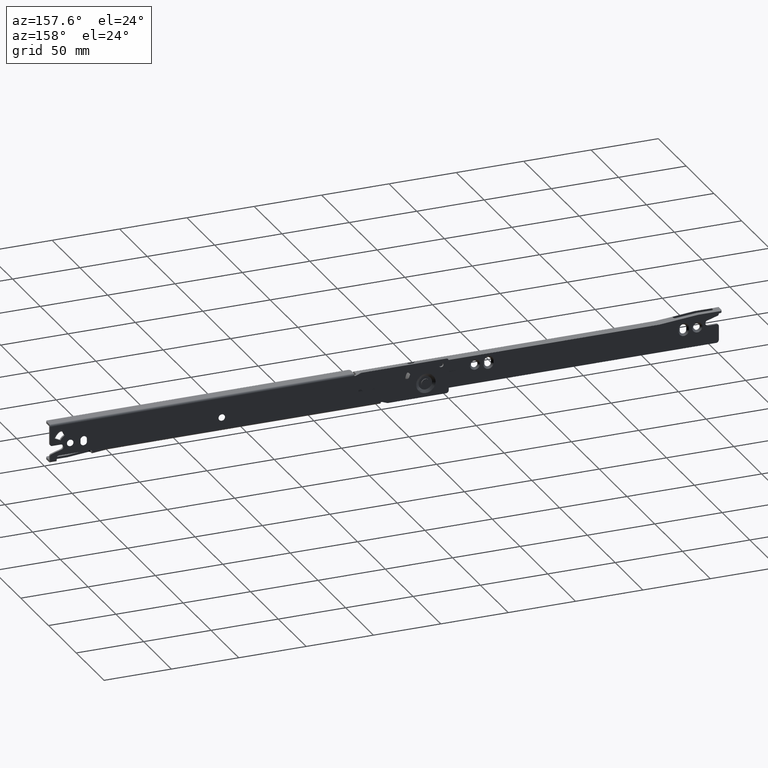
[diagram: clean part render]
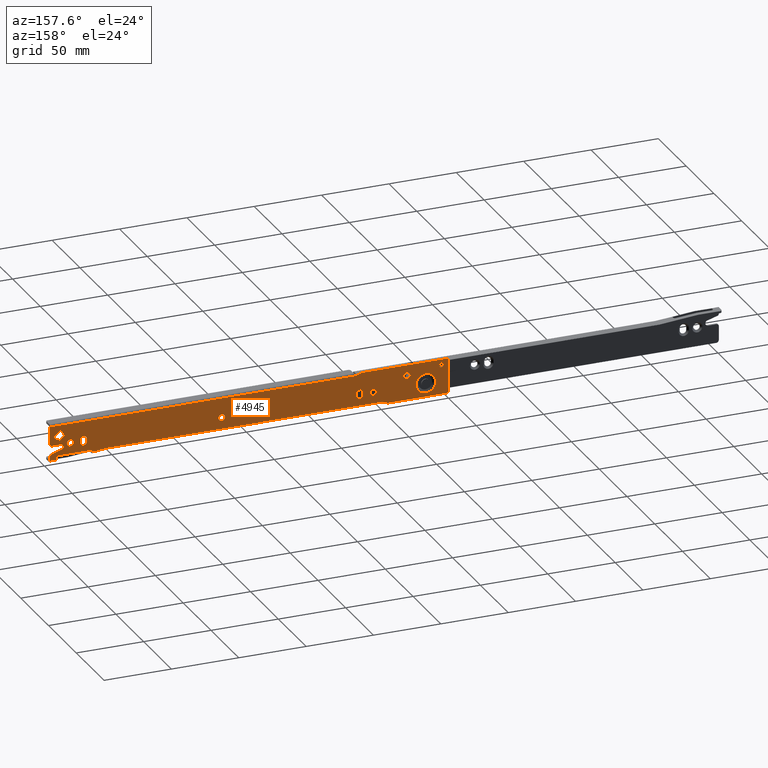
[diagram: same view with one face highlighted and labeled with its STEP entity id]
A machine part, auxiliary view. The second image highlights one B-rep face of the part: STEP entity #4945.
In plain terms, the highlighted face is a freeform B-spline surface patch.
Its self-contained STEP definition (entity closure, byte-faithful):
#1123=CARTESIAN_POINT('',(371.118561086913590,12.499999996330480,11.202092767644951));
#1124=VERTEX_POINT('',#1123);
#1125=CARTESIAN_POINT('',(373.500000000000000,12.499999999999719,9.100000000000025));
#1126=VERTEX_POINT('',#1125);
#1127=CARTESIAN_POINT('',(371.118561086913530,12.499999996330482,11.202092767644954));
#1128=CARTESIAN_POINT('',(371.381523407967790,12.499999999999718,9.100000000000025));
#1129=CARTESIAN_POINT('',(373.500000000000000,12.499999999999719,9.100000000000025));
#1137=(BOUNDED_CURVE()B_SPLINE_CURVE(2,(#1127,#1128,#1129),.UNSPECIFIED.,.F.,.U.)B_SPLINE_CURVE_WITH_KNOTS((3,3),(0.271473932788229,0.500000000000000),.UNSPECIFIED.)CURVE()GEOMETRIC_REPRESENTATION_ITEM()RATIONAL_B_SPLINE_CURVE((0.954005422866374,0.732265058366260,1.0))REPRESENTATION_ITEM(''));
#1138=EDGE_CURVE('',#1124,#1126,#1137,.T.);
#1179=CARTESIAN_POINT('',(375.899908616832700,12.499999998237460,11.520943697521259));
#1180=VERTEX_POINT('',#1179);
#1186=CARTESIAN_POINT('',(373.500000000000000,12.499999999999719,9.100000000000025));
#1187=CARTESIAN_POINT('',(375.900000000000150,12.499999999999718,9.100000000000025));
#1188=CARTESIAN_POINT('',(375.899999999999980,12.499999999999719,11.500000000000000));
#1189=CARTESIAN_POINT('',(375.899999999999980,12.499999999999721,11.510472054281713));
#1190=CARTESIAN_POINT('',(375.899908616832650,12.499999998237461,11.520943697521263));
#1198=(BOUNDED_CURVE()B_SPLINE_CURVE(2,(#1186,#1187,#1188,#1189,#1190),.UNSPECIFIED.,.F.,.U.)B_SPLINE_CURVE_WITH_KNOTS((3,2,3),(0.500000000000000,0.750000000000000,0.751539896142181),.UNSPECIFIED.)CURVE()GEOMETRIC_REPRESENTATION_ITEM()RATIONAL_B_SPLINE_CURVE((1.0,0.707106781186548,1.0,0.998195899449113,0.996414023918053))REPRESENTATION_ITEM(''));
#1199=EDGE_CURVE('',#1126,#1180,#1198,.T.);
#1226=CARTESIAN_POINT('',(373.500000000000000,12.499999999999719,13.899999999999981));
#1227=VERTEX_POINT('',#1226);
#1228=CARTESIAN_POINT('',(373.500000000000000,12.499999999999719,13.899999999999981));
#1229=CARTESIAN_POINT('',(371.100000000000140,12.499999999999718,13.899999999999974));
#1230=CARTESIAN_POINT('',(371.100000000000020,12.499999999999719,11.500000000000000));
#1231=CARTESIAN_POINT('',(371.099999999999970,12.499999999999716,11.350468146650559));
#1232=CARTESIAN_POINT('',(371.118561086913530,12.499999996330482,11.202092767644954));
#1240=(BOUNDED_CURVE()B_SPLINE_CURVE(2,(#1228,#1229,#1230,#1231,#1232),.UNSPECIFIED.,.F.,.U.)B_SPLINE_CURVE_WITH_KNOTS((3,2,3),(0.0,0.250000000000000,0.271473932788229),.UNSPECIFIED.)CURVE()GEOMETRIC_REPRESENTATION_ITEM()RATIONAL_B_SPLINE_CURVE((1.0,0.707106781186548,1.0,0.974841722820288,0.954005422866374))REPRESENTATION_ITEM(''));
#1241=EDGE_CURVE('',#1227,#1124,#1240,.T.);
#1243=CARTESIAN_POINT('',(375.899908616832650,12.499999998237461,11.520943697521263));
#1244=CARTESIAN_POINT('',(375.879146881017500,12.499999999999719,13.899999999999974));
#1245=CARTESIAN_POINT('',(373.500000000000000,12.499999999999719,13.899999999999981));
#1253=(BOUNDED_CURVE()B_SPLINE_CURVE(2,(#1243,#1244,#1245),.UNSPECIFIED.,.F.,.U.)B_SPLINE_CURVE_WITH_KNOTS((3,3),(0.751539896142181,1.0),.UNSPECIFIED.)CURVE()GEOMETRIC_REPRESENTATION_ITEM()RATIONAL_B_SPLINE_CURVE((0.996414023918053,0.708910881737435,1.0))REPRESENTATION_ITEM(''));
#1254=EDGE_CURVE('',#1180,#1227,#1253,.T.);
#1309=CARTESIAN_POINT('',(258.618561086913590,12.499999996330480,11.202092767644951));
#1310=VERTEX_POINT('',#1309);
#1311=CARTESIAN_POINT('',(261.0,12.499999999999719,9.100000000000025));
#1312=VERTEX_POINT('',#1311);
#1313=CARTESIAN_POINT('',(258.618561086913640,12.499999996330482,11.202092767644956));
#1314=CARTESIAN_POINT('',(258.881523407967790,12.499999999999719,9.100000000000025));
#1315=CARTESIAN_POINT('',(261.0,12.499999999999719,9.100000000000025));
#1323=(BOUNDED_CURVE()B_SPLINE_CURVE(2,(#1313,#1314,#1315),.UNSPECIFIED.,.F.,.U.)B_SPLINE_CURVE_WITH_KNOTS((3,3),(0.271473932788229,0.500000000000000),.UNSPECIFIED.)CURVE()GEOMETRIC_REPRESENTATION_ITEM()RATIONAL_B_SPLINE_CURVE((0.954005422866374,0.732265058366259,1.0))REPRESENTATION_ITEM(''));
#1324=EDGE_CURVE('',#1310,#1312,#1323,.T.);
#1365=CARTESIAN_POINT('',(263.399908616832700,12.499999998237460,11.520943697521259));
#1366=VERTEX_POINT('',#1365);
#1372=CARTESIAN_POINT('',(261.0,12.499999999999719,9.100000000000025));
#1373=CARTESIAN_POINT('',(263.399999999999980,12.499999999999718,9.100000000000025));
#1374=CARTESIAN_POINT('',(263.399999999999980,12.499999999999719,11.500000000000000));
#1375=CARTESIAN_POINT('',(263.400000000000030,12.499999999999721,11.510472054281713));
#1376=CARTESIAN_POINT('',(263.399908616832700,12.499999998237461,11.520943697521263));
#1384=(BOUNDED_CURVE()B_SPLINE_CURVE(2,(#1372,#1373,#1374,#1375,#1376),.UNSPECIFIED.,.F.,.U.)B_SPLINE_CURVE_WITH_KNOTS((3,2,3),(0.500000000000000,0.750000000000000,0.751539896142181),.UNSPECIFIED.)CURVE()GEOMETRIC_REPRESENTATION_ITEM()RATIONAL_B_SPLINE_CURVE((1.0,0.707106781186548,1.0,0.998195899449113,0.996414023918053))REPRESENTATION_ITEM(''));
#1385=EDGE_CURVE('',#1312,#1366,#1384,.T.);
#1412=CARTESIAN_POINT('',(261.0,12.499999999999719,13.899999999999981));
#1413=VERTEX_POINT('',#1412);
#1414=CARTESIAN_POINT('',(261.0,12.499999999999719,13.899999999999981));
#1415=CARTESIAN_POINT('',(258.600000000000140,12.499999999999718,13.899999999999974));
#1416=CARTESIAN_POINT('',(258.600000000000080,12.499999999999719,11.500000000000000));
#1417=CARTESIAN_POINT('',(258.600000000000080,12.499999999999721,11.350468146650556));
#1418=CARTESIAN_POINT('',(258.618561086913590,12.499999996330486,11.202092767644949));
#1426=(BOUNDED_CURVE()B_SPLINE_CURVE(2,(#1414,#1415,#1416,#1417,#1418),.UNSPECIFIED.,.F.,.U.)B_SPLINE_CURVE_WITH_KNOTS((3,2,3),(0.0,0.250000000000000,0.271473932788229),.UNSPECIFIED.)CURVE()GEOMETRIC_REPRESENTATION_ITEM()RATIONAL_B_SPLINE_CURVE((1.0,0.707106781186548,1.0,0.974841722820288,0.954005422866374))REPRESENTATION_ITEM(''));
#1427=EDGE_CURVE('',#1413,#1310,#1426,.T.);
#1429=CARTESIAN_POINT('',(263.399908616832760,12.499999998237465,11.520943697521266));
#1430=CARTESIAN_POINT('',(263.379146881017330,12.499999999999719,13.899999999999975));
#1431=CARTESIAN_POINT('',(261.0,12.499999999999719,13.899999999999981));
#1439=(BOUNDED_CURVE()B_SPLINE_CURVE(2,(#1429,#1430,#1431),.UNSPECIFIED.,.F.,.U.)B_SPLINE_CURVE_WITH_KNOTS((3,3),(0.751539896142181,1.0),.UNSPECIFIED.)CURVE()GEOMETRIC_REPRESENTATION_ITEM()RATIONAL_B_SPLINE_CURVE((0.996414023918052,0.708910881737435,1.0))REPRESENTATION_ITEM(''));
#1440=EDGE_CURVE('',#1366,#1413,#1439,.T.);
#1495=CARTESIAN_POINT('',(233.618561086913590,12.499999996330470,19.202092767644942));
#1496=VERTEX_POINT('',#1495);
#1497=CARTESIAN_POINT('',(236.0,12.499999999999719,17.100000000000001));
#1498=VERTEX_POINT('',#1497);
#1499=CARTESIAN_POINT('',(233.618561086913620,12.499999996330464,19.202092767644938));
#1500=CARTESIAN_POINT('',(233.881523407967790,12.499999999999721,17.100000000000009));
#1501=CARTESIAN_POINT('',(236.0,12.499999999999719,17.100000000000001));
#1509=(BOUNDED_CURVE()B_SPLINE_CURVE(2,(#1499,#1500,#1501),.UNSPECIFIED.,.F.,.U.)B_SPLINE_CURVE_WITH_KNOTS((3,3),(0.271473932788229,0.500000000000000),.UNSPECIFIED.)CURVE()GEOMETRIC_REPRESENTATION_ITEM()RATIONAL_B_SPLINE_CURVE((0.954005422866373,0.732265058366260,1.0))REPRESENTATION_ITEM(''));
#1510=EDGE_CURVE('',#1496,#1498,#1509,.T.);
#1551=CARTESIAN_POINT('',(238.399908616832700,12.499999998237460,19.520943697521261));
#1552=VERTEX_POINT('',#1551);
#1558=CARTESIAN_POINT('',(236.0,12.499999999999719,17.100000000000001));
#1559=CARTESIAN_POINT('',(238.400000000000010,12.499999999999719,17.099999999999998));
#1560=CARTESIAN_POINT('',(238.400000000000010,12.499999999999719,19.500000000000000));
#1561=CARTESIAN_POINT('',(238.400000000000030,12.499999999999721,19.510472054281699));
#1562=CARTESIAN_POINT('',(238.399908616832680,12.499999998237461,19.520943697521261));
#1570=(BOUNDED_CURVE()B_SPLINE_CURVE(2,(#1558,#1559,#1560,#1561,#1562),.UNSPECIFIED.,.F.,.U.)B_SPLINE_CURVE_WITH_KNOTS((3,2,3),(0.500000000000000,0.750000000000000,0.751539896142181),.UNSPECIFIED.)CURVE()GEOMETRIC_REPRESENTATION_ITEM()RATIONAL_B_SPLINE_CURVE((1.0,0.707106781186547,1.0,0.998195899449113,0.996414023918053))REPRESENTATION_ITEM(''));
#1571=EDGE_CURVE('',#1498,#1552,#1570,.T.);
#1598=CARTESIAN_POINT('',(236.0,12.499999999999719,21.899999999999999));
#1599=VERTEX_POINT('',#1598);
#1600=CARTESIAN_POINT('',(236.0,12.499999999999719,21.899999999999999));
#1601=CARTESIAN_POINT('',(233.599999999999990,12.499999999999719,21.900000000000002));
#1602=CARTESIAN_POINT('',(233.599999999999990,12.499999999999719,19.500000000000000));
#1603=CARTESIAN_POINT('',(233.599999999999990,12.499999999999718,19.350468146650549));
#1604=CARTESIAN_POINT('',(233.618561086913590,12.499999996330462,19.202092767644945));
#1612=(BOUNDED_CURVE()B_SPLINE_CURVE(2,(#1600,#1601,#1602,#1603,#1604),.UNSPECIFIED.,.F.,.U.)B_SPLINE_CURVE_WITH_KNOTS((3,2,3),(0.0,0.250000000000000,0.271473932788229),.UNSPECIFIED.)CURVE()GEOMETRIC_REPRESENTATION_ITEM()RATIONAL_B_SPLINE_CURVE((1.0,0.707106781186547,1.0,0.974841722820288,0.954005422866373))REPRESENTATION_ITEM(''));
#1613=EDGE_CURVE('',#1599,#1496,#1612,.T.);
#1615=CARTESIAN_POINT('',(238.399908616832730,12.499999998237454,19.520943697521265));
#1616=CARTESIAN_POINT('',(238.379146881017330,12.499999999999721,21.900000000000009));
#1617=CARTESIAN_POINT('',(236.0,12.499999999999719,21.899999999999999));
#1625=(BOUNDED_CURVE()B_SPLINE_CURVE(2,(#1615,#1616,#1617),.UNSPECIFIED.,.F.,.U.)B_SPLINE_CURVE_WITH_KNOTS((3,3),(0.751539896142181,1.0),.UNSPECIFIED.)CURVE()GEOMETRIC_REPRESENTATION_ITEM()RATIONAL_B_SPLINE_CURVE((0.996414023918052,0.708910881737435,1.0))REPRESENTATION_ITEM(''));
#1626=EDGE_CURVE('',#1552,#1599,#1625,.T.);
#1685=CARTESIAN_POINT('',(208.812233328869610,12.499999999999719,23.656559910700238));
#1686=VERTEX_POINT('',#1685);
#1687=CARTESIAN_POINT('',(210.550000000000010,12.499999999999719,21.699999999999999));
#1688=VERTEX_POINT('',#1687);
#1689=CARTESIAN_POINT('',(208.812233328869610,12.499999999999719,23.656559910700242));
#1690=CARTESIAN_POINT('',(208.799999999999980,12.499999999999718,23.553642209442284));
#1691=CARTESIAN_POINT('',(208.800000000000010,12.499999999999719,23.449999999999999));
#1692=CARTESIAN_POINT('',(208.799999999999950,12.499999999999719,21.699999999999999));
#1693=CARTESIAN_POINT('',(210.550000000000010,12.499999999999719,21.699999999999999));
#1701=(BOUNDED_CURVE()B_SPLINE_CURVE(2,(#1689,#1690,#1691,#1692,#1693),.UNSPECIFIED.,.F.,.U.)B_SPLINE_CURVE_WITH_KNOTS((3,2,3),(0.229562473505742,0.250000000000000,0.500000000000000),.UNSPECIFIED.)CURVE()GEOMETRIC_REPRESENTATION_ITEM()RATIONAL_B_SPLINE_CURVE((0.956026754168477,0.976055948322046,1.0,0.707106781186547,1.0))REPRESENTATION_ITEM(''));
#1702=EDGE_CURVE('',#1686,#1688,#1701,.T.);
#1743=CARTESIAN_POINT('',(212.296735897237710,12.499999999999719,23.343165055804750));
#1744=VERTEX_POINT('',#1743);
#1750=CARTESIAN_POINT('',(210.550000000000010,12.499999999999719,21.699999999999999));
#1751=CARTESIAN_POINT('',(212.196235617067460,12.499999999999718,21.700000000000003));
#1752=CARTESIAN_POINT('',(212.296735897237740,12.499999999999723,23.343165055804754));
#1760=(BOUNDED_CURVE()B_SPLINE_CURVE(2,(#1750,#1751,#1752),.UNSPECIFIED.,.F.,.U.)B_SPLINE_CURVE_WITH_KNOTS((3,3),(0.500000000000000,0.739332962240142),.UNSPECIFIED.)CURVE()GEOMETRIC_REPRESENTATION_ITEM()RATIONAL_B_SPLINE_CURVE((1.0,0.719603993285305,0.976072041669287))REPRESENTATION_ITEM(''));
#1761=EDGE_CURVE('',#1688,#1744,#1760,.T.);
#1784=CARTESIAN_POINT('',(210.550000000000010,12.499999999999719,25.199999999999999));
#1785=VERTEX_POINT('',#1784);
#1786=CARTESIAN_POINT('',(210.550000000000010,12.499999999999719,25.199999999999999));
#1787=CARTESIAN_POINT('',(208.995694579676780,12.499999999999719,25.200000000000003));
#1788=CARTESIAN_POINT('',(208.812233328869670,12.499999999999723,23.656559910700238));
#1796=(BOUNDED_CURVE()B_SPLINE_CURVE(2,(#1786,#1787,#1788),.UNSPECIFIED.,.F.,.U.)B_SPLINE_CURVE_WITH_KNOTS((3,3),(0.0,0.229562473505742),.UNSPECIFIED.)CURVE()GEOMETRIC_REPRESENTATION_ITEM()RATIONAL_B_SPLINE_CURVE((1.0,0.731050832864502,0.956026754168476))REPRESENTATION_ITEM(''));
#1797=EDGE_CURVE('',#1785,#1686,#1796,.T.);
#1799=CARTESIAN_POINT('',(212.296735897237650,12.499999999999719,23.343165055804757));
#1800=CARTESIAN_POINT('',(212.299999999999980,12.499999999999718,23.396532664218196));
#1801=CARTESIAN_POINT('',(212.300000000000010,12.499999999999719,23.449999999999999));
#1802=CARTESIAN_POINT('',(212.299999999999950,12.499999999999719,25.200000000000006));
#1803=CARTESIAN_POINT('',(210.550000000000010,12.499999999999719,25.199999999999999));
#1811=(BOUNDED_CURVE()B_SPLINE_CURVE(2,(#1799,#1800,#1801,#1802,#1803),.UNSPECIFIED.,.F.,.U.)B_SPLINE_CURVE_WITH_KNOTS((3,2,3),(0.739332962240142,0.750000000000000,1.0),.UNSPECIFIED.)CURVE()GEOMETRIC_REPRESENTATION_ITEM()RATIONAL_B_SPLINE_CURVE((0.976072041669288,0.987502787901242,1.0,0.707106781186547,1.0))REPRESENTATION_ITEM(''));
#1812=EDGE_CURVE('',#1744,#1785,#1811,.T.);
#1867=CARTESIAN_POINT('',(483.618561086913590,12.499999996330491,11.202092767644960));
#1868=VERTEX_POINT('',#1867);
#1869=CARTESIAN_POINT('',(486.0,12.499999999999719,9.100000000000025));
#1870=VERTEX_POINT('',#1869);
#1871=CARTESIAN_POINT('',(483.618561086913640,12.499999996330496,11.202092767644960));
#1872=CARTESIAN_POINT('',(483.881523407967790,12.499999999999718,9.100000000000023));
#1873=CARTESIAN_POINT('',(486.0,12.499999999999719,9.100000000000025));
#1881=(BOUNDED_CURVE()B_SPLINE_CURVE(2,(#1871,#1872,#1873),.UNSPECIFIED.,.F.,.U.)B_SPLINE_CURVE_WITH_KNOTS((3,3),(0.271473932788228,0.500000000000000),.UNSPECIFIED.)CURVE()GEOMETRIC_REPRESENTATION_ITEM()RATIONAL_B_SPLINE_CURVE((0.954005422866375,0.732265058366259,1.0))REPRESENTATION_ITEM(''));
#1882=EDGE_CURVE('',#1868,#1870,#1881,.T.);
#1923=CARTESIAN_POINT('',(488.399908616832590,12.499999998237451,11.520943697521259));
#1924=VERTEX_POINT('',#1923);
#1930=CARTESIAN_POINT('',(486.0,12.499999999999719,9.100000000000025));
#1931=CARTESIAN_POINT('',(488.399999999999810,12.499999999999718,9.100000000000025));
#1932=CARTESIAN_POINT('',(488.399999999999920,12.499999999999719,11.500000000000000));
#1933=CARTESIAN_POINT('',(488.399999999999860,12.499999999999721,11.510472054281713));
#1934=CARTESIAN_POINT('',(488.399908616832530,12.499999998237451,11.520943697521263));
#1942=(BOUNDED_CURVE()B_SPLINE_CURVE(2,(#1930,#1931,#1932,#1933,#1934),.UNSPECIFIED.,.F.,.U.)B_SPLINE_CURVE_WITH_KNOTS((3,2,3),(0.500000000000000,0.750000000000000,0.751539896142181),.UNSPECIFIED.)CURVE()GEOMETRIC_REPRESENTATION_ITEM()RATIONAL_B_SPLINE_CURVE((1.0,0.707106781186548,1.0,0.998195899449113,0.996414023918053))REPRESENTATION_ITEM(''));
#1943=EDGE_CURVE('',#1870,#1924,#1942,.T.);
#1970=CARTESIAN_POINT('',(486.0,12.499999999999719,13.899999999999981));
#1971=VERTEX_POINT('',#1970);
#1972=CARTESIAN_POINT('',(486.0,12.499999999999719,13.899999999999981));
#1973=CARTESIAN_POINT('',(483.600000000000020,12.499999999999718,13.899999999999974));
#1974=CARTESIAN_POINT('',(483.600000000000020,12.499999999999719,11.500000000000000));
#1975=CARTESIAN_POINT('',(483.600000000000020,12.499999999999716,11.350468146650561));
#1976=CARTESIAN_POINT('',(483.618561086913640,12.499999996330496,11.202092767644960));
#1984=(BOUNDED_CURVE()B_SPLINE_CURVE(2,(#1972,#1973,#1974,#1975,#1976),.UNSPECIFIED.,.F.,.U.)B_SPLINE_CURVE_WITH_KNOTS((3,2,3),(0.0,0.250000000000000,0.271473932788228),.UNSPECIFIED.)CURVE()GEOMETRIC_REPRESENTATION_ITEM()RATIONAL_B_SPLINE_CURVE((1.0,0.707106781186548,1.0,0.974841722820288,0.954005422866375))REPRESENTATION_ITEM(''));
#1985=EDGE_CURVE('',#1971,#1868,#1984,.T.);
#1987=CARTESIAN_POINT('',(488.399908616832590,12.499999998237454,11.520943697521258));
#1988=CARTESIAN_POINT('',(488.379146881017160,12.499999999999719,13.899999999999972));
#1989=CARTESIAN_POINT('',(486.0,12.499999999999719,13.899999999999981));
#1997=(BOUNDED_CURVE()B_SPLINE_CURVE(2,(#1987,#1988,#1989),.UNSPECIFIED.,.F.,.U.)B_SPLINE_CURVE_WITH_KNOTS((3,3),(0.751539896142181,1.0),.UNSPECIFIED.)CURVE()GEOMETRIC_REPRESENTATION_ITEM()RATIONAL_B_SPLINE_CURVE((0.996414023918053,0.708910881737435,1.0))REPRESENTATION_ITEM(''));
#1998=EDGE_CURVE('',#1924,#1971,#1997,.T.);
#2081=CARTESIAN_POINT('',(226.953429373998200,12.499999999999771,6.225133479462977));
#2082=VERTEX_POINT('',#2081);
#2096=CARTESIAN_POINT('',(222.0,12.499999999999760,4.263932022500369));
#2097=VERTEX_POINT('',#2096);
#2098=CARTESIAN_POINT('',(222.0,12.499999999999760,4.263932022500369));
#2099=CARTESIAN_POINT('',(224.864961987011530,12.499999999999755,4.263932022500369));
#2100=CARTESIAN_POINT('',(226.953429373998290,12.499999999999762,6.225133479462977));
#2108=(BOUNDED_CURVE()B_SPLINE_CURVE(2,(#2098,#2099,#2100),.UNSPECIFIED.,.F.,.U.)B_SPLINE_CURVE_WITH_KNOTS((3,3),(0.500000000000000,0.620259312884512),.UNSPECIFIED.)CURVE()GEOMETRIC_REPRESENTATION_ITEM()RATIONAL_B_SPLINE_CURVE((1.0,0.859107451027845,0.853764031095200))REPRESENTATION_ITEM(''));
#2109=EDGE_CURVE('',#2097,#2082,#2108,.T.);
#2111=CARTESIAN_POINT('',(222.0,12.499999999999760,18.736067977499630));
#2112=VERTEX_POINT('',#2111);
#2113=CARTESIAN_POINT('',(222.0,12.499999999999760,18.736067977499630));
#2114=CARTESIAN_POINT('',(214.763932022500280,12.499999999999758,18.736067977499641));
#2115=CARTESIAN_POINT('',(214.763932022500400,12.499999999999760,11.500000000000000));
#2116=CARTESIAN_POINT('',(214.763932022500280,12.499999999999758,4.263932022500369));
#2117=CARTESIAN_POINT('',(222.0,12.499999999999760,4.263932022500369));
#2125=(BOUNDED_CURVE()B_SPLINE_CURVE(2,(#2113,#2114,#2115,#2116,#2117),.UNSPECIFIED.,.F.,.U.)B_SPLINE_CURVE_WITH_KNOTS((3,2,3),(0.0,0.250000000000000,0.500000000000000),.UNSPECIFIED.)CURVE()GEOMETRIC_REPRESENTATION_ITEM()RATIONAL_B_SPLINE_CURVE((1.0,0.707106781186548,1.0,0.707106781186548,1.0))REPRESENTATION_ITEM(''));
#2126=EDGE_CURVE('',#2112,#2097,#2125,.T.);
#2128=CARTESIAN_POINT('',(227.274866525016390,12.499999999999771,16.453429377267589));
#2129=VERTEX_POINT('',#2128);
#2130=CARTESIAN_POINT('',(227.274866525016390,12.499999999999771,16.453429377267589));
#2131=CARTESIAN_POINT('',(225.131326231418570,12.499999999999762,18.736067977499630));
#2132=CARTESIAN_POINT('',(222.0,12.499999999999760,18.736067977499630));
#2140=(BOUNDED_CURVE()B_SPLINE_CURVE(2,(#2130,#2131,#2132),.UNSPECIFIED.,.F.,.U.)B_SPLINE_CURVE_WITH_KNOTS((3,3),(0.870259312856017,1.0),.UNSPECIFIED.)CURVE()GEOMETRIC_REPRESENTATION_ITEM()RATIONAL_B_SPLINE_CURVE((0.853764031097732,0.847999330125319,1.0))REPRESENTATION_ITEM(''));
#2141=EDGE_CURVE('',#2129,#2112,#2140,.T.);
#2224=CARTESIAN_POINT('',(226.953429373998260,12.499999999999762,6.225133479462977));
#2225=CARTESIAN_POINT('',(229.236067977499570,12.499999999999753,8.368673769392384));
#2226=CARTESIAN_POINT('',(229.236067977499600,12.499999999999760,11.500000000000000));
#2227=CARTESIAN_POINT('',(229.236067977499570,12.499999999999760,14.364961986221436));
#2228=CARTESIAN_POINT('',(227.274866525016390,12.499999999999771,16.453429377267589));
#2236=(BOUNDED_CURVE()B_SPLINE_CURVE(2,(#2224,#2225,#2226,#2227,#2228),.UNSPECIFIED.,.F.,.U.)B_SPLINE_CURVE_WITH_KNOTS((3,2,3),(0.620259312884512,0.750000000000000,0.870259312856018),.UNSPECIFIED.)CURVE()GEOMETRIC_REPRESENTATION_ITEM()RATIONAL_B_SPLINE_CURVE((0.853764031095200,0.847999330158702,1.0,0.859107451061228,0.853764031097732))REPRESENTATION_ITEM(''));
#2237=EDGE_CURVE('',#2082,#2129,#2236,.T.);
#2558=CARTESIAN_POINT('',(268.600000000000020,12.499999999999719,10.500000000000000));
#2559=VERTEX_POINT('',#2558);
#2565=CARTESIAN_POINT('',(268.600000000000020,12.499999999999719,12.500000000000000));
#2566=VERTEX_POINT('',#2565);
#2567=CARTESIAN_POINT('',(268.600000000000020,12.499999999999719,10.500000000000000));
#2568=CARTESIAN_POINT('',(268.600000000000020,12.499999999999719,12.500000000000000));
#2569=QUASI_UNIFORM_CURVE('',1,(#2567,#2568),.UNSPECIFIED.,.F.,.U.);
#2570=EDGE_CURVE('',#2559,#2566,#2569,.T.);
#2605=CARTESIAN_POINT('',(273.399999999999980,12.499999999999719,12.500000000000000));
#2606=VERTEX_POINT('',#2605);
#2630=CARTESIAN_POINT('',(273.399999999999980,12.499999999999719,12.500000000000000));
#2631=CARTESIAN_POINT('',(273.399999999999980,12.499999999999718,14.899999999999975));
#2632=CARTESIAN_POINT('',(271.0,12.499999999999719,14.899999999999981));
#2633=CARTESIAN_POINT('',(268.600000000000020,12.499999999999718,14.899999999999975));
#2634=CARTESIAN_POINT('',(268.600000000000080,12.499999999999719,12.500000000000000));
#2642=(BOUNDED_CURVE()B_SPLINE_CURVE(2,(#2630,#2631,#2632,#2633,#2634),.UNSPECIFIED.,.F.,.U.)B_SPLINE_CURVE_WITH_KNOTS((3,2,3),(0.0,0.500000000000000,1.0),.UNSPECIFIED.)CURVE()GEOMETRIC_REPRESENTATION_ITEM()RATIONAL_B_SPLINE_CURVE((1.0,0.707106781186548,1.0,0.707106781186548,1.0))REPRESENTATION_ITEM(''));
#2643=EDGE_CURVE('',#2606,#2566,#2642,.T.);
#2668=CARTESIAN_POINT('',(273.399999999999980,12.499999999999719,10.500000000000000));
#2669=VERTEX_POINT('',#2668);
#2675=CARTESIAN_POINT('',(268.600000000000080,12.499999999999719,10.500000000000000));
#2676=CARTESIAN_POINT('',(268.600000000000020,12.499999999999718,8.100000000000026));
#2677=CARTESIAN_POINT('',(271.0,12.499999999999719,8.100000000000026));
#2678=CARTESIAN_POINT('',(273.399999999999980,12.499999999999718,8.100000000000026));
#2679=CARTESIAN_POINT('',(273.399999999999980,12.499999999999719,10.500000000000000));
#2687=(BOUNDED_CURVE()B_SPLINE_CURVE(2,(#2675,#2676,#2677,#2678,#2679),.UNSPECIFIED.,.F.,.U.)B_SPLINE_CURVE_WITH_KNOTS((3,2,3),(0.0,0.500000000000000,1.0),.UNSPECIFIED.)CURVE()GEOMETRIC_REPRESENTATION_ITEM()RATIONAL_B_SPLINE_CURVE((1.0,0.707106781186548,1.0,0.707106781186548,1.0))REPRESENTATION_ITEM(''));
#2688=EDGE_CURVE('',#2559,#2669,#2687,.T.);
#2715=CARTESIAN_POINT('',(273.399999999999980,12.499999999999719,12.500000000000000));
#2716=CARTESIAN_POINT('',(273.399999999999980,12.499999999999719,10.500000000000000));
#2717=QUASI_UNIFORM_CURVE('',1,(#2715,#2716),.UNSPECIFIED.,.F.,.U.);
#2718=EDGE_CURVE('',#2606,#2669,#2717,.T.);
#2734=CARTESIAN_POINT('',(275.0,12.499999999999719,26.0));
#2735=VERTEX_POINT('',#2734);
#2736=CARTESIAN_POINT('',(274.0,12.499999999999719,26.0));
#2737=VERTEX_POINT('',#2736);
#2738=CARTESIAN_POINT('',(275.0,12.499999999999719,26.0));
#2739=CARTESIAN_POINT('',(274.0,12.499999999999719,26.0));
#2740=QUASI_UNIFORM_CURVE('',1,(#2738,#2739),.UNSPECIFIED.,.F.,.U.);
#2741=EDGE_CURVE('',#2735,#2737,#2740,.T.);
#2785=CARTESIAN_POINT('',(255.500000000000000,12.499999999999719,3.0));
#2786=VERTEX_POINT('',#2785);
#2813=CARTESIAN_POINT('',(254.500000000000000,12.499999999999719,3.0));
#2814=VERTEX_POINT('',#2813);
#2815=CARTESIAN_POINT('',(254.500000000000000,12.499999999999719,3.0));
#2816=CARTESIAN_POINT('',(255.500000000000000,12.499999999999719,3.0));
#2817=QUASI_UNIFORM_CURVE('',1,(#2815,#2816),.UNSPECIFIED.,.F.,.U.);
#2818=EDGE_CURVE('',#2814,#2786,#2817,.T.);
#2841=CARTESIAN_POINT('',(250.500000000000000,12.499999999999719,1.500000000000000));
#2842=VERTEX_POINT('',#2841);
#2843=CARTESIAN_POINT('',(250.500000000000000,12.499999999999719,1.500000000000000));
#2844=CARTESIAN_POINT('',(254.500000000000000,12.499999999999719,3.0));
#2845=QUASI_UNIFORM_CURVE('',1,(#2843,#2844),.UNSPECIFIED.,.F.,.U.);
#2846=EDGE_CURVE('',#2842,#2814,#2845,.T.);
#2869=CARTESIAN_POINT('',(207.0,12.499999999999719,1.500000000000000));
#2870=VERTEX_POINT('',#2869);
#2871=CARTESIAN_POINT('',(207.0,12.499999999999719,1.500000000000000));
#2872=CARTESIAN_POINT('',(250.500000000000000,12.499999999999719,1.500000000000000));
#2873=QUASI_UNIFORM_CURVE('',1,(#2871,#2872),.UNSPECIFIED.,.F.,.U.);
#2874=EDGE_CURVE('',#2870,#2842,#2873,.T.);
#2906=CARTESIAN_POINT('',(205.0,12.499999999999719,3.500000000000000));
#2907=VERTEX_POINT('',#2906);
#2908=CARTESIAN_POINT('',(205.0,12.499999999999719,3.500000000000000));
#2909=CARTESIAN_POINT('',(205.000000000000090,12.499999999999718,1.500000000000000));
#2910=CARTESIAN_POINT('',(207.0,12.499999999999719,1.500000000000000));
#2918=(BOUNDED_CURVE()B_SPLINE_CURVE(2,(#2908,#2909,#2910),.UNSPECIFIED.,.F.,.U.)CURVE()GEOMETRIC_REPRESENTATION_ITEM()QUASI_UNIFORM_CURVE()RATIONAL_B_SPLINE_CURVE((1.0,0.707106781186548,1.0))REPRESENTATION_ITEM(''));
#2919=EDGE_CURVE('',#2907,#2870,#2918,.T.);
#2950=CARTESIAN_POINT('',(205.0,12.499999999999719,25.500000000000000));
#2951=VERTEX_POINT('',#2950);
#2952=CARTESIAN_POINT('',(205.0,12.499999999999719,25.500000000000000));
#2953=CARTESIAN_POINT('',(205.0,12.499999999999719,3.500000000000000));
#2954=QUASI_UNIFORM_CURVE('',1,(#2952,#2953),.UNSPECIFIED.,.F.,.U.);
#2955=EDGE_CURVE('',#2951,#2907,#2954,.T.);
#2987=CARTESIAN_POINT('',(207.0,12.499999999999719,27.500000000000000));
#2988=VERTEX_POINT('',#2987);
#2989=CARTESIAN_POINT('',(207.0,12.499999999999719,27.500000000000000));
#2990=CARTESIAN_POINT('',(205.000000000000090,12.499999999999718,27.500000000000004));
#2991=CARTESIAN_POINT('',(205.0,12.499999999999719,25.500000000000000));
#2999=(BOUNDED_CURVE()B_SPLINE_CURVE(2,(#2989,#2990,#2991),.UNSPECIFIED.,.F.,.U.)CURVE()GEOMETRIC_REPRESENTATION_ITEM()QUASI_UNIFORM_CURVE()RATIONAL_B_SPLINE_CURVE((1.0,0.707106781186548,1.0))REPRESENTATION_ITEM(''));
#3000=EDGE_CURVE('',#2988,#2951,#2999,.T.);
#3031=CARTESIAN_POINT('',(270.0,12.499999999999719,27.500000000000000));
#3032=VERTEX_POINT('',#3031);
#3033=CARTESIAN_POINT('',(270.0,12.499999999999719,27.500000000000000));
#3034=CARTESIAN_POINT('',(207.0,12.499999999999719,27.500000000000000));
#3035=QUASI_UNIFORM_CURVE('',1,(#3033,#3034),.UNSPECIFIED.,.F.,.U.);
#3036=EDGE_CURVE('',#3032,#2988,#3035,.T.);
#3059=CARTESIAN_POINT('',(274.0,12.499999999999719,26.0));
#3060=CARTESIAN_POINT('',(270.0,12.499999999999719,27.500000000000000));
#3061=QUASI_UNIFORM_CURVE('',1,(#3059,#3060),.UNSPECIFIED.,.F.,.U.);
#3062=EDGE_CURVE('',#2737,#3032,#3061,.T.);
#3093=CARTESIAN_POINT('',(498.202494185347010,12.499999999999719,17.045640091753551));
#3094=VERTEX_POINT('',#3093);
#3123=CARTESIAN_POINT('',(492.545640091754020,12.499999999999760,22.702494185347099));
#3124=VERTEX_POINT('',#3123);
#3140=CARTESIAN_POINT('',(498.202494185347120,12.499999999999760,17.045640091753580));
#3141=CARTESIAN_POINT('',(496.329397377332900,12.499999999999758,20.829397377332583));
#3142=CARTESIAN_POINT('',(492.545640091753910,12.499999999999760,22.702494185346922));
#3150=(BOUNDED_CURVE()B_SPLINE_CURVE(2,(#3140,#3141,#3142),.UNSPECIFIED.,.F.,.U.)CURVE()GEOMETRIC_REPRESENTATION_ITEM()QUASI_UNIFORM_CURVE()RATIONAL_B_SPLINE_CURVE((1.0,0.947417545564864,1.0))REPRESENTATION_ITEM(''));
#3151=EDGE_CURVE('',#3094,#3124,#3150,.T.);
#3360=CARTESIAN_POINT('',(458.066831356245020,12.499999999999760,3.0));
#3361=VERTEX_POINT('',#3360);
#3383=CARTESIAN_POINT('',(458.066831356245020,12.499999999999760,3.0));
#3384=CARTESIAN_POINT('',(255.500000000000000,12.499999999999719,3.0));
#3385=QUASI_UNIFORM_CURVE('',1,(#3383,#3384),.UNSPECIFIED.,.F.,.U.);
#3386=EDGE_CURVE('',#3361,#2786,#3385,.T.);
#3407=CARTESIAN_POINT('',(469.500000000000000,12.499999999999760,1.979181371093275));
#3408=VERTEX_POINT('',#3407);
#3428=CARTESIAN_POINT('',(469.500000000000000,12.499999999999760,1.979181371093275));
#3429=CARTESIAN_POINT('',(458.066831356245020,12.499999999999760,3.0));
#3430=QUASI_UNIFORM_CURVE('',1,(#3428,#3429),.UNSPECIFIED.,.F.,.U.);
#3431=EDGE_CURVE('',#3408,#3361,#3430,.T.);
#3452=CARTESIAN_POINT('',(501.0,12.499999999999719,0.500000000000000));
#3453=VERTEX_POINT('',#3452);
#3474=CARTESIAN_POINT('',(496.0,12.499999999999760,0.500000000000000));
#3475=VERTEX_POINT('',#3474);
#3489=CARTESIAN_POINT('',(501.0,12.499999999999719,0.500000000000000));
#3490=CARTESIAN_POINT('',(496.0,12.499999999999760,0.500000000000000));
#3491=QUASI_UNIFORM_CURVE('',1,(#3489,#3490),.UNSPECIFIED.,.F.,.U.);
#3492=EDGE_CURVE('',#3453,#3475,#3491,.T.);
#3511=CARTESIAN_POINT('',(501.0,12.499999999999719,26.0));
#3512=VERTEX_POINT('',#3511);
#3513=CARTESIAN_POINT('',(275.0,12.499999999999719,26.0));
#3514=CARTESIAN_POINT('',(501.0,12.499999999999719,26.0));
#3515=QUASI_UNIFORM_CURVE('',1,(#3513,#3514),.UNSPECIFIED.,.F.,.U.);
#3516=EDGE_CURVE('',#2735,#3512,#3515,.T.);
#3745=CARTESIAN_POINT('',(494.500000000000000,12.499999999999719,3.500000000000000));
#3746=VERTEX_POINT('',#3745);
#3752=CARTESIAN_POINT('',(496.0,12.499999999999719,2.0));
#3753=VERTEX_POINT('',#3752);
#3754=CARTESIAN_POINT('',(496.0,12.499999999999719,2.0));
#3755=CARTESIAN_POINT('',(496.000000000000060,12.499999999999718,3.499999999999999));
#3756=CARTESIAN_POINT('',(494.500000000000000,12.499999999999719,3.500000000000000));
#3764=(BOUNDED_CURVE()B_SPLINE_CURVE(2,(#3754,#3755,#3756),.UNSPECIFIED.,.F.,.U.)CURVE()GEOMETRIC_REPRESENTATION_ITEM()QUASI_UNIFORM_CURVE()RATIONAL_B_SPLINE_CURVE((1.0,0.707106781186548,1.0))REPRESENTATION_ITEM(''));
#3765=EDGE_CURVE('',#3753,#3746,#3764,.T.);
#3780=CARTESIAN_POINT('',(496.0,12.499999999999760,0.500000000000000));
#3781=CARTESIAN_POINT('',(496.0,12.499999999999719,2.0));
#3782=QUASI_UNIFORM_CURVE('',1,(#3780,#3781),.UNSPECIFIED.,.F.,.U.);
#3783=EDGE_CURVE('',#3475,#3753,#3782,.T.);
#3819=CARTESIAN_POINT('',(469.500000000000000,12.499999999999719,2.0));
#3820=VERTEX_POINT('',#3819);
#3821=CARTESIAN_POINT('',(469.500000000000000,12.499999999999719,2.0));
#3822=CARTESIAN_POINT('',(469.500000000000000,12.499999999999760,1.979181371093275));
#3823=QUASI_UNIFORM_CURVE('',1,(#3821,#3822),.UNSPECIFIED.,.F.,.U.);
#3824=EDGE_CURVE('',#3820,#3408,#3823,.T.);
#3879=CARTESIAN_POINT('',(471.0,12.499999999999719,3.500000000000000));
#3880=VERTEX_POINT('',#3879);
#3881=CARTESIAN_POINT('',(471.0,12.499999999999719,3.500000000000000));
#3882=CARTESIAN_POINT('',(469.500000000000000,12.499999999999718,3.499999999999999));
#3883=CARTESIAN_POINT('',(469.500000000000000,12.499999999999719,2.0));
#3891=(BOUNDED_CURVE()B_SPLINE_CURVE(2,(#3881,#3882,#3883),.UNSPECIFIED.,.F.,.U.)CURVE()GEOMETRIC_REPRESENTATION_ITEM()QUASI_UNIFORM_CURVE()RATIONAL_B_SPLINE_CURVE((1.0,0.707106781186548,1.0))REPRESENTATION_ITEM(''));
#3892=EDGE_CURVE('',#3880,#3820,#3891,.T.);
#3913=CARTESIAN_POINT('',(494.500000000000000,12.499999999999719,3.500000000000000));
#3914=CARTESIAN_POINT('',(471.0,12.499999999999719,3.500000000000000));
#3915=QUASI_UNIFORM_CURVE('',1,(#3913,#3914),.UNSPECIFIED.,.F.,.U.);
#3916=EDGE_CURVE('',#3746,#3880,#3915,.T.);
#4049=CARTESIAN_POINT('',(473.600000000000020,12.499999999999719,12.500000000000000));
#4050=VERTEX_POINT('',#4049);
#4065=CARTESIAN_POINT('',(473.600000000000020,12.499999999999719,10.500000000000000));
#4066=VERTEX_POINT('',#4065);
#4072=CARTESIAN_POINT('',(473.600000000000020,12.499999999999719,10.500000000000000));
#4073=CARTESIAN_POINT('',(473.600000000000020,12.499999999999719,12.500000000000000));
#4074=QUASI_UNIFORM_CURVE('',1,(#4072,#4073),.UNSPECIFIED.,.F.,.U.);
#4075=EDGE_CURVE('',#4066,#4050,#4074,.T.);
#4100=CARTESIAN_POINT('',(478.399999999999980,12.499999999999719,10.500000000000000));
#4101=VERTEX_POINT('',#4100);
#4107=CARTESIAN_POINT('',(473.600000000000020,12.499999999999719,10.500000000000000));
#4108=CARTESIAN_POINT('',(473.599999999999910,12.499999999999718,8.100000000000026));
#4109=CARTESIAN_POINT('',(476.0,12.499999999999719,8.100000000000026));
#4110=CARTESIAN_POINT('',(478.399999999999920,12.499999999999718,8.100000000000026));
#4111=CARTESIAN_POINT('',(478.399999999999920,12.499999999999719,10.500000000000000));
#4119=(BOUNDED_CURVE()B_SPLINE_CURVE(2,(#4107,#4108,#4109,#4110,#4111),.UNSPECIFIED.,.F.,.U.)B_SPLINE_CURVE_WITH_KNOTS((3,2,3),(0.0,0.500000000000000,1.0),.UNSPECIFIED.)CURVE()GEOMETRIC_REPRESENTATION_ITEM()RATIONAL_B_SPLINE_CURVE((1.0,0.707106781186548,1.0,0.707106781186548,1.0))REPRESENTATION_ITEM(''));
#4120=EDGE_CURVE('',#4066,#4101,#4119,.T.);
#4159=CARTESIAN_POINT('',(478.399999999999980,12.499999999999719,12.500000000000000));
#4160=VERTEX_POINT('',#4159);
#4184=CARTESIAN_POINT('',(478.399999999999920,12.499999999999719,12.500000000000000));
#4185=CARTESIAN_POINT('',(478.399999999999920,12.499999999999718,14.899999999999975));
#4186=CARTESIAN_POINT('',(476.0,12.499999999999719,14.899999999999981));
#4187=CARTESIAN_POINT('',(473.599999999999910,12.499999999999718,14.899999999999975));
#4188=CARTESIAN_POINT('',(473.600000000000020,12.499999999999719,12.500000000000000));
#4196=(BOUNDED_CURVE()B_SPLINE_CURVE(2,(#4184,#4185,#4186,#4187,#4188),.UNSPECIFIED.,.F.,.U.)B_SPLINE_CURVE_WITH_KNOTS((3,2,3),(0.0,0.500000000000000,1.0),.UNSPECIFIED.)CURVE()GEOMETRIC_REPRESENTATION_ITEM()RATIONAL_B_SPLINE_CURVE((1.0,0.707106781186548,1.0,0.707106781186548,1.0))REPRESENTATION_ITEM(''));
#4197=EDGE_CURVE('',#4160,#4050,#4196,.T.);
#4214=CARTESIAN_POINT('',(478.399999999999980,12.499999999999719,12.500000000000000));
#4215=CARTESIAN_POINT('',(478.399999999999980,12.499999999999719,10.500000000000000));
#4216=QUASI_UNIFORM_CURVE('',1,(#4214,#4215),.UNSPECIFIED.,.F.,.U.);
#4217=EDGE_CURVE('',#4160,#4101,#4216,.T.);
#4235=CARTESIAN_POINT('',(493.273396778939000,12.499999999999719,14.605558380388720));
#4236=VERTEX_POINT('',#4235);
#4237=CARTESIAN_POINT('',(493.273396778939000,12.499999999999719,14.605558380388720));
#4238=CARTESIAN_POINT('',(498.202494185347010,12.499999999999719,17.045640091753551));
#4239=QUASI_UNIFORM_CURVE('',1,(#4237,#4238),.UNSPECIFIED.,.F.,.U.);
#4240=EDGE_CURVE('',#4236,#3094,#4239,.T.);
#4280=CARTESIAN_POINT('',(490.105558380389030,12.499999999999719,17.773396778938650));
#4281=VERTEX_POINT('',#4280);
#4282=CARTESIAN_POINT('',(493.273396778938720,12.499999999999719,14.605558380388560));
#4283=CARTESIAN_POINT('',(492.224462551275960,12.499999999999725,16.724462551275565));
#4284=CARTESIAN_POINT('',(490.105558380388910,12.499999999999719,17.773396778938508));
#4292=(BOUNDED_CURVE()B_SPLINE_CURVE(2,(#4282,#4283,#4284),.UNSPECIFIED.,.F.,.U.)CURVE()GEOMETRIC_REPRESENTATION_ITEM()QUASI_UNIFORM_CURVE()RATIONAL_B_SPLINE_CURVE((1.0,0.947417541943561,1.0))REPRESENTATION_ITEM(''));
#4293=EDGE_CURVE('',#4236,#4281,#4292,.T.);
#4308=CARTESIAN_POINT('',(492.545640091754020,12.499999999999760,22.702494185347099));
#4309=CARTESIAN_POINT('',(490.105558380389030,12.499999999999719,17.773396778938650));
#4310=QUASI_UNIFORM_CURVE('',1,(#4308,#4309),.UNSPECIFIED.,.F.,.U.);
#4311=EDGE_CURVE('',#3124,#4281,#4310,.T.);
#4554=CARTESIAN_POINT('',(501.0,12.499999999999719,3.885440999999900));
#4555=VERTEX_POINT('',#4554);
#4556=CARTESIAN_POINT('',(501.0,12.499999999999719,3.885440999999900));
#4557=CARTESIAN_POINT('',(501.0,12.499999999999719,0.500000000000000));
#4558=QUASI_UNIFORM_CURVE('',1,(#4556,#4557),.UNSPECIFIED.,.F.,.U.);
#4559=EDGE_CURVE('',#4555,#3453,#4558,.T.);
#4592=CARTESIAN_POINT('',(499.932856000000020,12.499999999999719,5.321629000000000));
#4593=VERTEX_POINT('',#4592);
#4594=CARTESIAN_POINT('',(501.0,12.499999999999719,3.885440999999900));
#4595=CARTESIAN_POINT('',(501.000000000000060,12.499999999999723,4.999999918498069));
#4596=CARTESIAN_POINT('',(499.932856000000020,12.499999999999719,5.321629000000000));
#4604=(BOUNDED_CURVE()B_SPLINE_CURVE(2,(#4594,#4595,#4596),.UNSPECIFIED.,.F.,.U.)CURVE()GEOMETRIC_REPRESENTATION_ITEM()QUASI_UNIFORM_CURVE()RATIONAL_B_SPLINE_CURVE((1.0,0.802673859108725,1.0))REPRESENTATION_ITEM(''));
#4605=EDGE_CURVE('',#4555,#4593,#4604,.T.);
#4636=CARTESIAN_POINT('',(492.422859009517990,12.499999999999719,7.585082697058320));
#4637=VERTEX_POINT('',#4636);
#4638=CARTESIAN_POINT('',(492.422859009517990,12.499999999999719,7.585082697058320));
#4639=CARTESIAN_POINT('',(499.932856000000020,12.499999999999719,5.321629000000000));
#4640=QUASI_UNIFORM_CURVE('',1,(#4638,#4639),.UNSPECIFIED.,.F.,.U.);
#4641=EDGE_CURVE('',#4637,#4593,#4640,.T.);
#4677=CARTESIAN_POINT('',(493.0,12.499999999999719,11.500000000000000));
#4678=VERTEX_POINT('',#4677);
#4679=CARTESIAN_POINT('',(493.0,12.499999999999719,11.500000000000000));
#4680=CARTESIAN_POINT('',(491.273225848600250,12.499999999999718,11.500000000000000));
#4681=CARTESIAN_POINT('',(491.021385003862120,12.499999999999719,9.791689384548558));
#4682=CARTESIAN_POINT('',(490.769544159124050,12.499999999999718,8.083378769097118));
#4683=CARTESIAN_POINT('',(492.422859009517990,12.499999999999719,7.585082697058318));
#4691=(BOUNDED_CURVE()B_SPLINE_CURVE(2,(#4679,#4680,#4681,#4682,#4683),.UNSPECIFIED.,.F.,.U.)B_SPLINE_CURVE_WITH_KNOTS((3,2,3),(0.0,0.500000000000000,1.0),.UNSPECIFIED.)CURVE()GEOMETRIC_REPRESENTATION_ITEM()RATIONAL_B_SPLINE_CURVE((1.0,0.756916340249793,1.0,0.756916340249793,1.0))REPRESENTATION_ITEM(''));
#4692=EDGE_CURVE('',#4678,#4637,#4691,.T.);
#4725=CARTESIAN_POINT('',(499.500000000000000,12.499999999999719,11.499999999999799));
#4726=VERTEX_POINT('',#4725);
#4727=CARTESIAN_POINT('',(499.500000000000000,12.499999999999719,11.499999999999799));
#4728=CARTESIAN_POINT('',(493.0,12.499999999999719,11.500000000000000));
#4729=QUASI_UNIFORM_CURVE('',1,(#4727,#4728),.UNSPECIFIED.,.F.,.U.);
#4730=EDGE_CURVE('',#4726,#4678,#4729,.T.);
#4762=CARTESIAN_POINT('',(501.0,12.499999999999719,12.999999999999799));
#4763=VERTEX_POINT('',#4762);
#4764=CARTESIAN_POINT('',(499.500000000000000,12.499999999999719,11.499999999999799));
#4765=CARTESIAN_POINT('',(500.999999999999890,12.499999999999718,11.499999999999803));
#4766=CARTESIAN_POINT('',(501.0,12.499999999999719,12.999999999999799));
#4774=(BOUNDED_CURVE()B_SPLINE_CURVE(2,(#4764,#4765,#4766),.UNSPECIFIED.,.F.,.U.)CURVE()GEOMETRIC_REPRESENTATION_ITEM()QUASI_UNIFORM_CURVE()RATIONAL_B_SPLINE_CURVE((1.0,0.707106781186548,1.0))REPRESENTATION_ITEM(''));
#4775=EDGE_CURVE('',#4726,#4763,#4774,.T.);
#4806=CARTESIAN_POINT('',(501.0,12.499999999999719,26.0));
#4807=CARTESIAN_POINT('',(501.0,12.499999999999719,12.999999999999799));
#4808=QUASI_UNIFORM_CURVE('',1,(#4806,#4807),.UNSPECIFIED.,.F.,.U.);
#4809=EDGE_CURVE('',#3512,#4763,#4808,.T.);
#4859=CARTESIAN_POINT('',(190.214800573705500,12.499999999999760,28.848649947668761));
#4860=CARTESIAN_POINT('',(515.785207365633250,12.499999999999760,28.848649947668761));
#4861=CARTESIAN_POINT('',(190.214800573705500,12.499999999999760,-0.848650671865194));
#4862=CARTESIAN_POINT('',(515.785207365633250,12.499999999999760,-0.848650671865194));
#4863=B_SPLINE_SURFACE_WITH_KNOTS('',1,1,((#4859,#4861),(#4860,#4862)),.UNSPECIFIED.,.F.,.F.,.U.,(2,2),(2,2),(0.0,325.570406791927780),(0.0,29.697300619533959),.UNSPECIFIED.);
#4864=ORIENTED_EDGE('',*,*,#3386,.T.);
#4865=ORIENTED_EDGE('',*,*,#2818,.F.);
#4866=ORIENTED_EDGE('',*,*,#2846,.F.);
#4867=ORIENTED_EDGE('',*,*,#2874,.F.);
#4868=ORIENTED_EDGE('',*,*,#2919,.F.);
#4869=ORIENTED_EDGE('',*,*,#2955,.F.);
#4870=ORIENTED_EDGE('',*,*,#3000,.F.);
#4871=ORIENTED_EDGE('',*,*,#3036,.F.);
#4872=ORIENTED_EDGE('',*,*,#3062,.F.);
#4873=ORIENTED_EDGE('',*,*,#2741,.F.);
#4874=ORIENTED_EDGE('',*,*,#3516,.T.);
#4875=ORIENTED_EDGE('',*,*,#4809,.T.);
#4876=ORIENTED_EDGE('',*,*,#4775,.F.);
#4877=ORIENTED_EDGE('',*,*,#4730,.T.);
#4878=ORIENTED_EDGE('',*,*,#4692,.T.);
#4879=ORIENTED_EDGE('',*,*,#4641,.T.);
#4880=ORIENTED_EDGE('',*,*,#4605,.F.);
#4881=ORIENTED_EDGE('',*,*,#4559,.T.);
#4882=ORIENTED_EDGE('',*,*,#3492,.T.);
#4883=ORIENTED_EDGE('',*,*,#3783,.T.);
#4884=ORIENTED_EDGE('',*,*,#3765,.T.);
#4885=ORIENTED_EDGE('',*,*,#3916,.T.);
#4886=ORIENTED_EDGE('',*,*,#3892,.T.);
#4887=ORIENTED_EDGE('',*,*,#3824,.T.);
#4888=ORIENTED_EDGE('',*,*,#3431,.T.);
#4889=EDGE_LOOP('',(#4864,#4865,#4866,#4867,#4868,#4869,#4870,#4871,#4872,#4873,#4874,#4875,#4876,#4877,#4878,#4879,#4880,#4881,#4882,#4883,#4884,#4885,#4886,#4887,#4888));
#4890=FACE_OUTER_BOUND('',#4889,.T.);
#4891=ORIENTED_EDGE('',*,*,#4197,.T.);
#4892=ORIENTED_EDGE('',*,*,#4075,.F.);
#4893=ORIENTED_EDGE('',*,*,#4120,.T.);
#4894=ORIENTED_EDGE('',*,*,#4217,.F.);
#4895=EDGE_LOOP('',(#4891,#4892,#4893,#4894));
#4896=FACE_BOUND('',#4895,.T.);
#4897=ORIENTED_EDGE('',*,*,#2126,.T.);
#4898=ORIENTED_EDGE('',*,*,#2109,.T.);
#4899=ORIENTED_EDGE('',*,*,#2237,.T.);
#4900=ORIENTED_EDGE('',*,*,#2141,.T.);
#4901=EDGE_LOOP('',(#4897,#4898,#4899,#4900));
#4902=FACE_BOUND('',#4901,.T.);
#4903=ORIENTED_EDGE('',*,*,#3151,.T.);
#4904=ORIENTED_EDGE('',*,*,#4311,.T.);
#4905=ORIENTED_EDGE('',*,*,#4293,.F.);
#4906=ORIENTED_EDGE('',*,*,#4240,.T.);
#4907=EDGE_LOOP('',(#4903,#4904,#4905,#4906));
#4908=FACE_BOUND('',#4907,.T.);
#4909=ORIENTED_EDGE('',*,*,#2718,.F.);
#4910=ORIENTED_EDGE('',*,*,#2643,.T.);
#4911=ORIENTED_EDGE('',*,*,#2570,.F.);
#4912=ORIENTED_EDGE('',*,*,#2688,.T.);
#4913=EDGE_LOOP('',(#4909,#4910,#4911,#4912));
#4914=FACE_BOUND('',#4913,.T.);
#4915=ORIENTED_EDGE('',*,*,#1943,.T.);
#4916=ORIENTED_EDGE('',*,*,#1998,.T.);
#4917=ORIENTED_EDGE('',*,*,#1985,.T.);
#4918=ORIENTED_EDGE('',*,*,#1882,.T.);
#4919=EDGE_LOOP('',(#4915,#4916,#4917,#4918));
#4920=FACE_BOUND('',#4919,.T.);
#4921=ORIENTED_EDGE('',*,*,#1761,.T.);
#4922=ORIENTED_EDGE('',*,*,#1812,.T.);
#4923=ORIENTED_EDGE('',*,*,#1797,.T.);
#4924=ORIENTED_EDGE('',*,*,#1702,.T.);
#4925=EDGE_LOOP('',(#4921,#4922,#4923,#4924));
#4926=FACE_BOUND('',#4925,.T.);
#4927=ORIENTED_EDGE('',*,*,#1571,.T.);
#4928=ORIENTED_EDGE('',*,*,#1626,.T.);
#4929=ORIENTED_EDGE('',*,*,#1613,.T.);
#4930=ORIENTED_EDGE('',*,*,#1510,.T.);
#4931=EDGE_LOOP('',(#4927,#4928,#4929,#4930));
#4932=FACE_BOUND('',#4931,.T.);
#4933=ORIENTED_EDGE('',*,*,#1385,.T.);
#4934=ORIENTED_EDGE('',*,*,#1440,.T.);
#4935=ORIENTED_EDGE('',*,*,#1427,.T.);
#4936=ORIENTED_EDGE('',*,*,#1324,.T.);
#4937=EDGE_LOOP('',(#4933,#4934,#4935,#4936));
#4938=FACE_BOUND('',#4937,.T.);
#4939=ORIENTED_EDGE('',*,*,#1199,.T.);
#4940=ORIENTED_EDGE('',*,*,#1254,.T.);
#4941=ORIENTED_EDGE('',*,*,#1241,.T.);
#4942=ORIENTED_EDGE('',*,*,#1138,.T.);
#4943=EDGE_LOOP('',(#4939,#4940,#4941,#4942));
#4944=FACE_BOUND('',#4943,.T.);
#4945=ADVANCED_FACE('',(#4890,#4896,#4902,#4908,#4914,#4920,#4926,#4932,#4938,#4944),#4863,.T.);